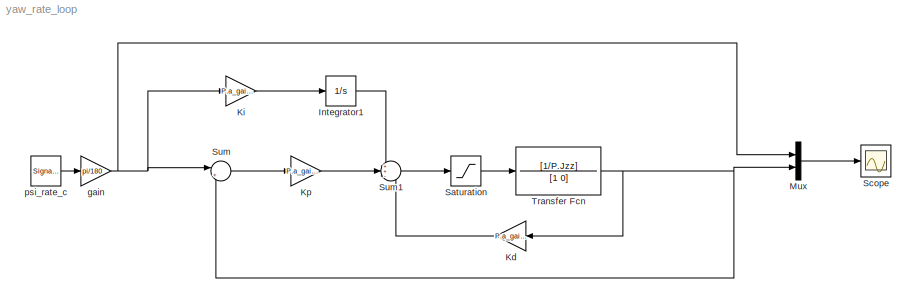
MODEL yaw_rate_loop
KIND model
BLOCK [Integrator] Integrator1
  Ports = [1, 1]
  SID = 9
BLOCK [Gain] Kd
  Gain = P.a_gains.Kd_yaw_rate
  OutDataTypeStr = Inherit: Inherit via internal rule
  ParamDataTypeStr = Inherit: Inherit via internal rule
  SID = 14
  SaturateOnIntegerOverflow = off
BLOCK [Gain] Ki
  Gain = P.a_gains.Ki_yaw_rate
  OutDataTypeStr = Inherit: Inherit via internal rule
  ParamDataTypeStr = Inherit: Inherit via internal rule
  SID = 6
  SaturateOnIntegerOverflow = off
BLOCK [Gain] Kp
  Gain = P.a_gains.Kp_yaw_rate
  OutDataTypeStr = Inherit: Inherit via internal rule
  ParamDataTypeStr = Inherit: Inherit via internal rule
  SID = 3
  SaturateOnIntegerOverflow = off
BLOCK [Mux] Mux
  DisplayOption = bar
  Inputs = 2
  Ports = [2, 1]
  SID = 13
BLOCK [Saturate] Saturation
  InputPortMap = u0
  LowerLimit = -P.T_psi_max
  Ports = [1, 1]
  SID = 7
  UpperLimit = P.T_psi_max
BLOCK [Scope] Scope
  DataFormat = StructureWithTime
  Floating = off
  NumInputPorts = 1
  Ports = [1]
  SID = 12
  SampleTime = 0
  ShowLegends = off
  ZoomMode = xonly
BLOCK [Sum] Sum
  IconShape = round
  InputSameDT = off
  Inputs = |+-
  OutDataTypeStr = Inherit: Inherit via internal rule
  Ports = [2, 1]
  SID = 5
  SaturateOnIntegerOverflow = off
BLOCK [Sum] Sum1
  IconShape = round
  InputSameDT = off
  Inputs = ++-
  OutDataTypeStr = Inherit: Inherit via internal rule
  Ports = [3, 1]
  SID = 8
  SaturateOnIntegerOverflow = off
BLOCK [TransferFcn] Transfer Fcn
  Denominator = [1 0]
  Numerator = [1/P.Jzz]
  SID = 2
BLOCK [Gain] gain
  Gain = pi/180
  OutDataTypeStr = Inherit: Inherit via internal rule
  ParamDataTypeStr = Inherit: Inherit via internal rule
  SID = 16
  SaturateOnIntegerOverflow = off
BLOCK [SignalGenerator] psi_rate_c
  Amplitude = 15
  Frequency = 0.05
  Ports = [0, 1]
  SID = 15
  Units = rad/sec
  WaveForm = square
LINE Integrator1:1 -> Sum1:1
LINE Kd:1 -> Sum1:3
LINE Ki:1 -> Integrator1:1
LINE Kp:1 -> Sum1:2
LINE Mux:1 -> Scope:1
LINE Saturation:1 -> Transfer Fcn:1
LINE Sum1:1 -> Saturation:1
LINE Sum:1 -> Kp:1
NET Transfer Fcn:1 -> Kd:1, Mux:2, Sum:2
NET gain:1 -> Ki:1, Mux:1, Sum:1
LINE psi_rate_c:1 -> gain:1
note: NET lines group one-source signal fan-out (src -> all destinations, sorted); 1:1 wires keep LINE
